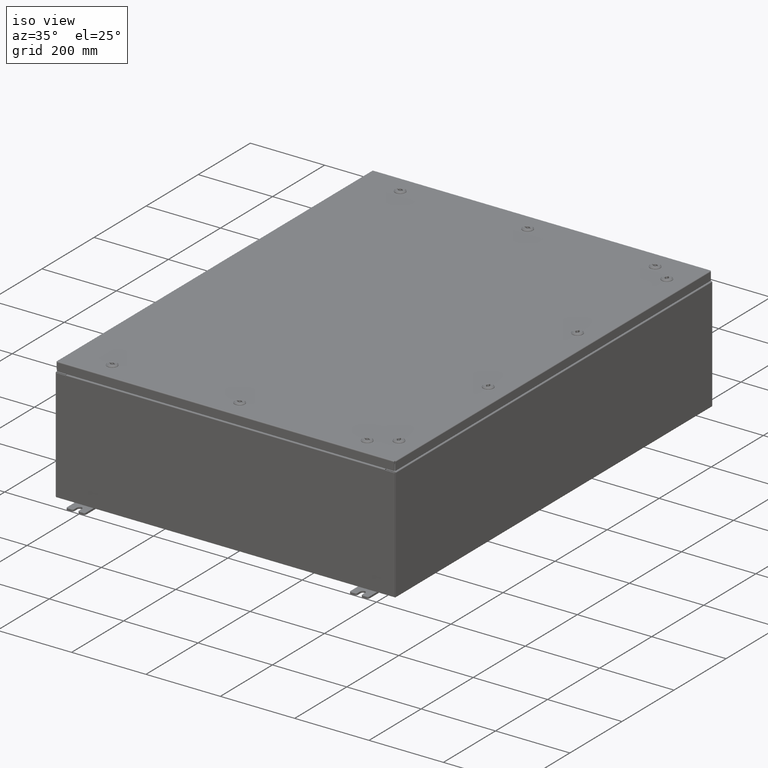
[diagram: clean part render]
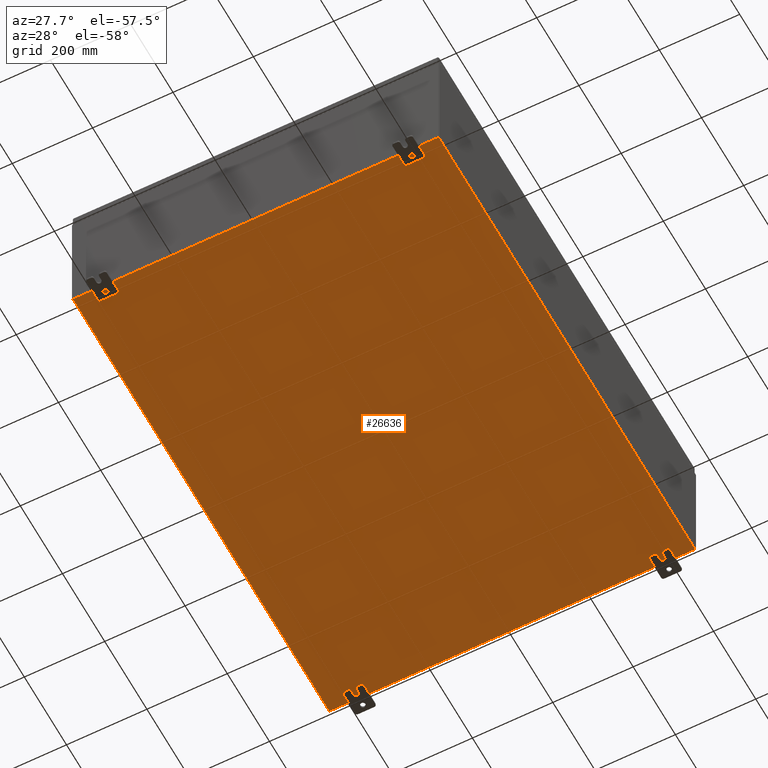
[diagram: tour spotlight — one face highlighted and labeled with its STEP entity id]
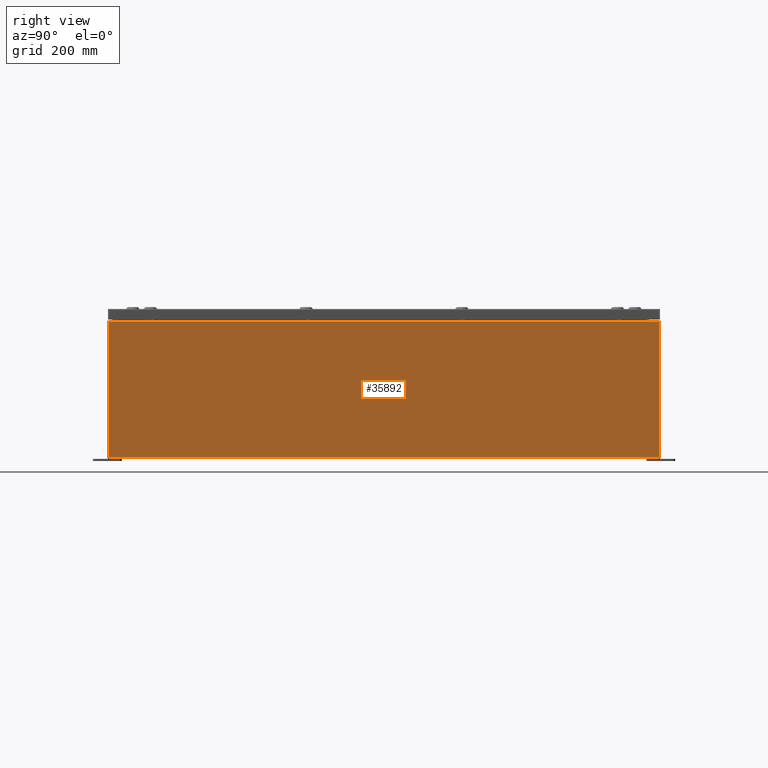
[diagram: tour spotlight — one face highlighted and labeled with its STEP entity id]
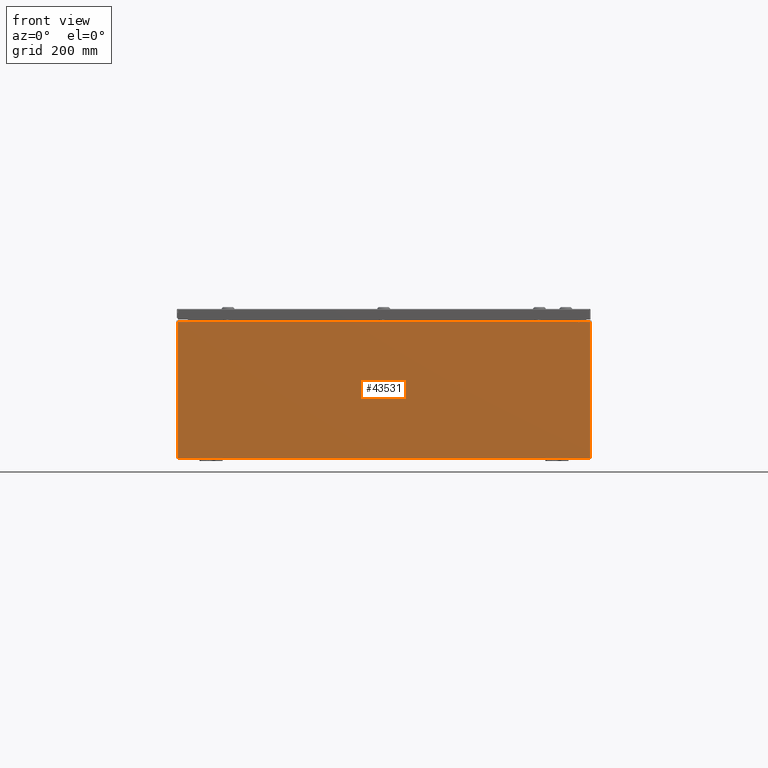
[diagram: tour spotlight — one face highlighted and labeled with its STEP entity id]
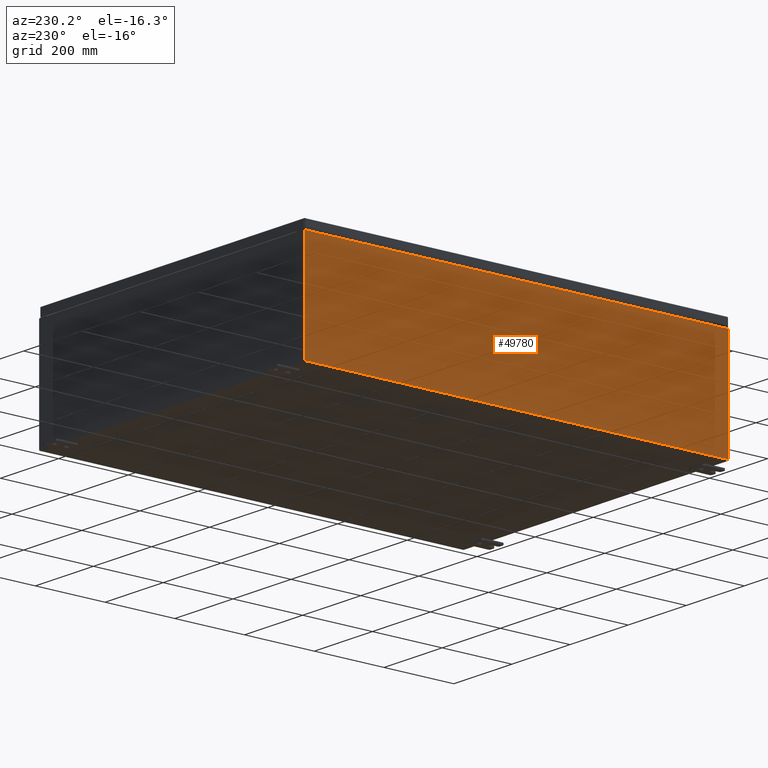
[diagram: tour spotlight — one face highlighted and labeled with its STEP entity id]
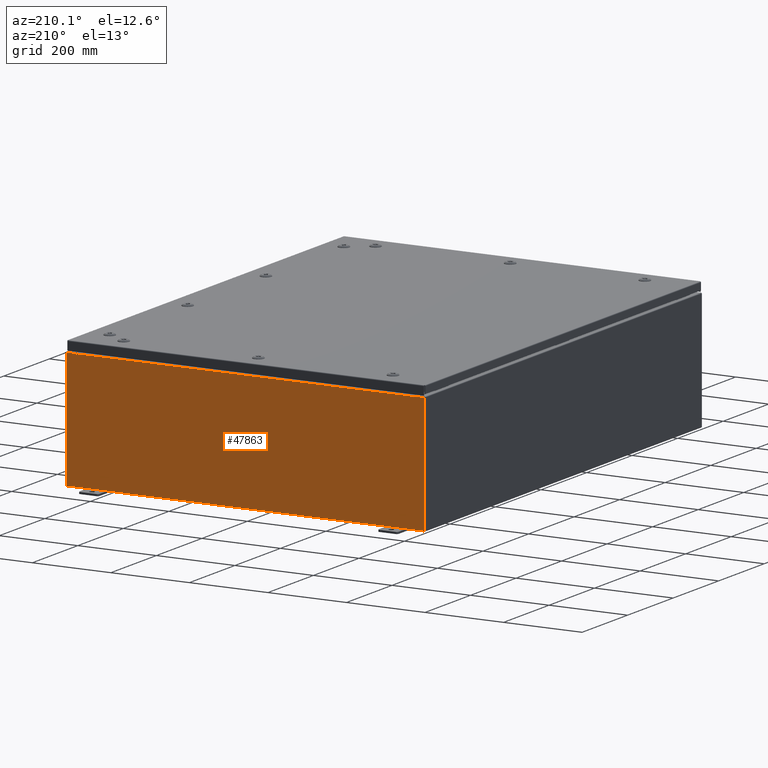
[diagram: tour spotlight — one face highlighted and labeled with its STEP entity id]
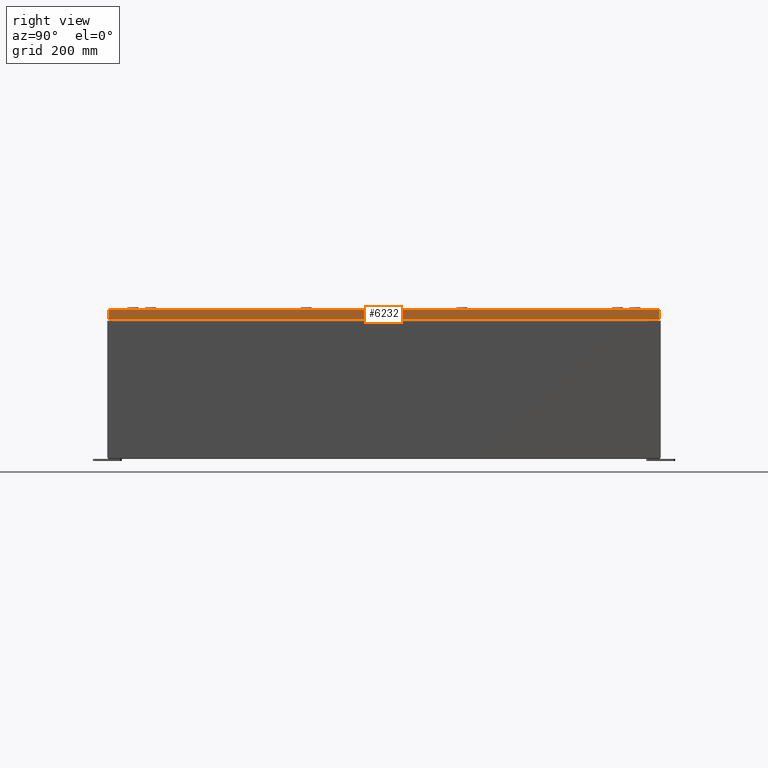
[diagram: tour spotlight — one face highlighted and labeled with its STEP entity id]
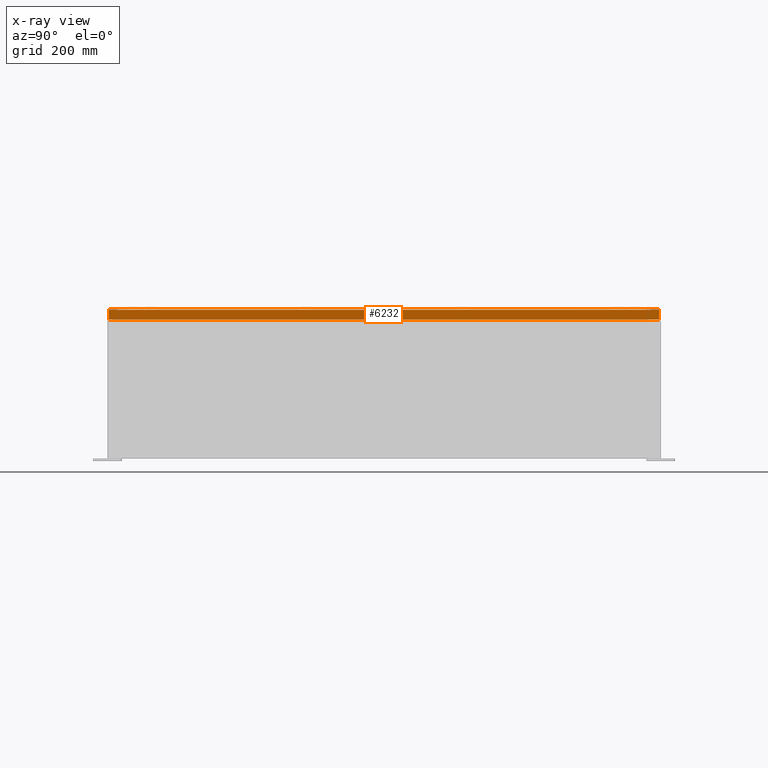
[diagram: x-ray of the same camera — body ghosted, this tour face saturated]
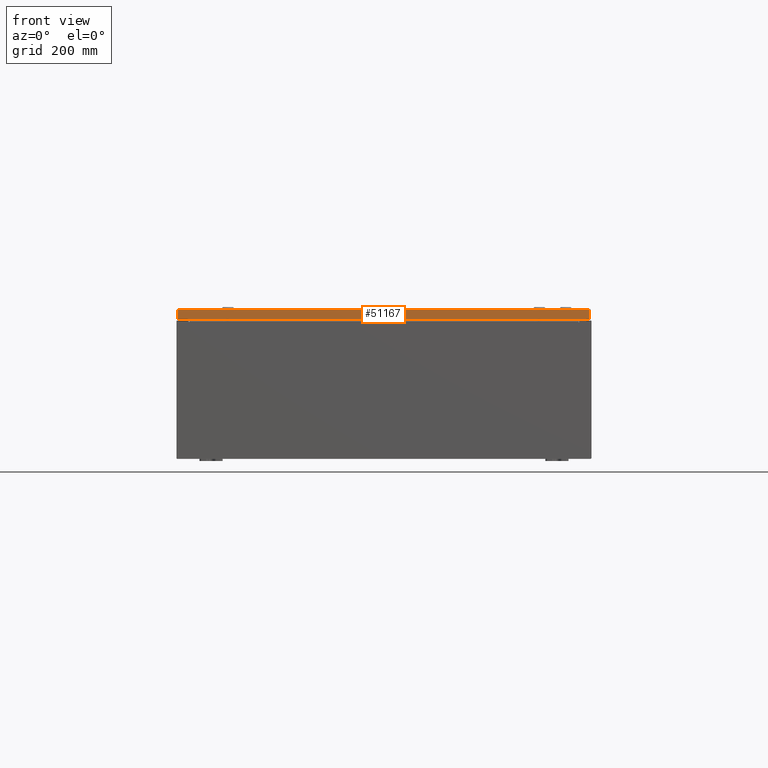
[diagram: tour spotlight — one face highlighted and labeled with its STEP entity id]
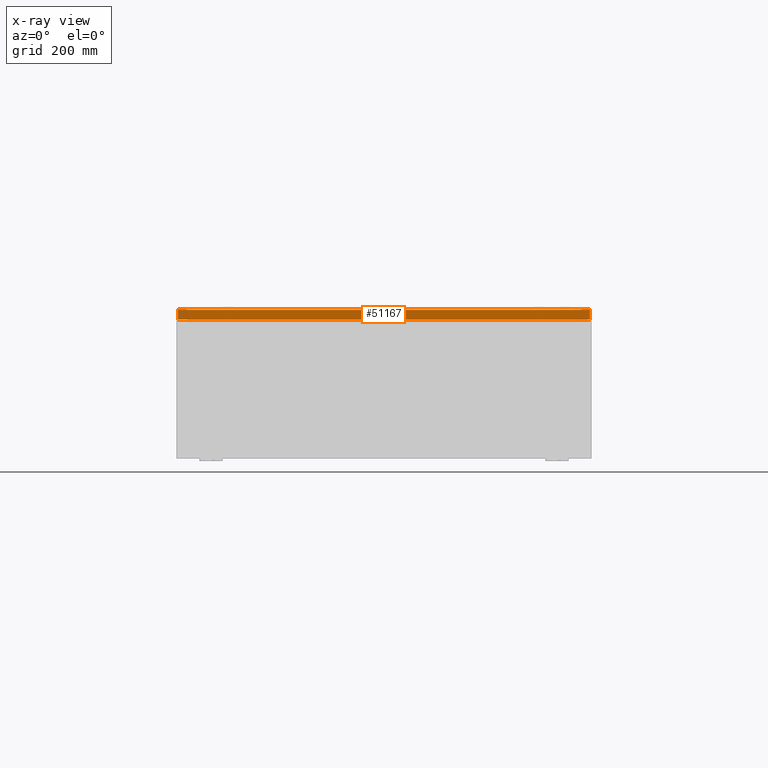
[diagram: x-ray of the same camera — body ghosted, this tour face saturated]
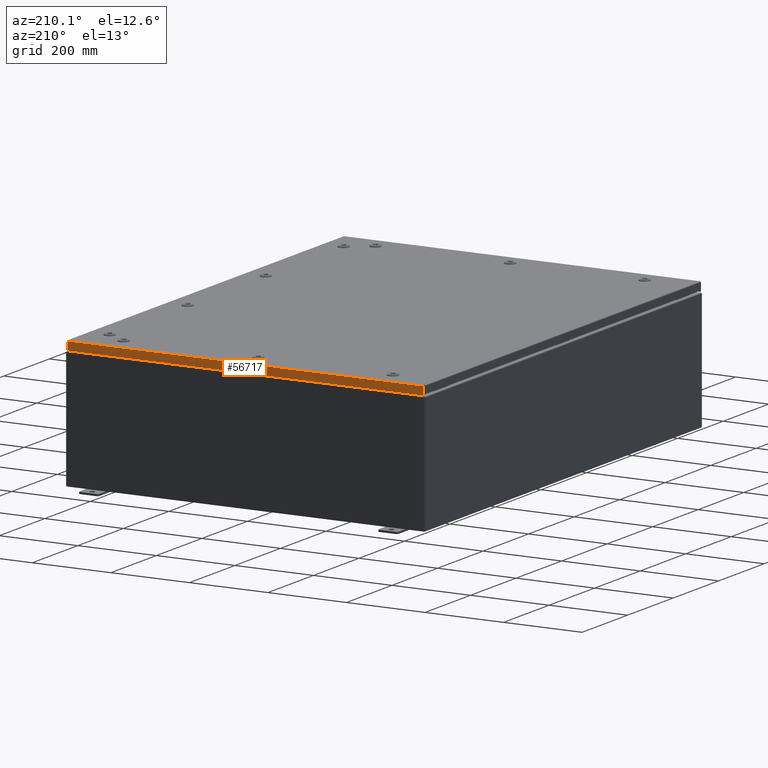
[diagram: tour spotlight — one face highlighted and labeled with its STEP entity id]
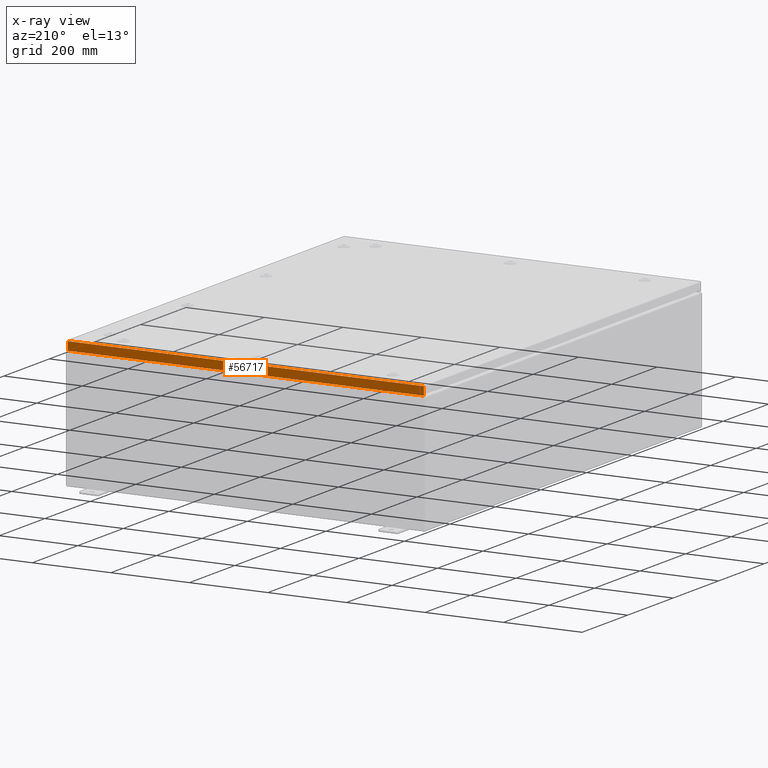
[diagram: x-ray of the same camera — body ghosted, this tour face saturated]
A machine part: a face-by-face anatomy tour. The part has 9060 B-rep faces; the first image is the clean iso view, then the 8 largest visible faces are spotlighted one at a time (largest first), each with its STEP entity span.

Face 1 — auxiliary view, entity #26636. In plain terms, the highlighted planar face has unit normal (0, 0, -1).
Definition (entity closure, byte-faithful):
#1952 = DIRECTION ( 'NONE',  ( -0.0000000000000000000, -1.000000000000000000, -8.208677865577646300E-017 ) ) ;
#2501 = CARTESIAN_POINT ( 'NONE',  ( -17.91230000000000500, -23.92529999999998900, -0.07469999999999994700 ) ) ;
#5456 = EDGE_CURVE ( 'NONE', #27024, #63889, #65703, .T. ) ;
#9116 = VECTOR ( 'NONE', #28925, 39.37007874015748100 ) ;
#9299 = CARTESIAN_POINT ( 'NONE',  ( -18.00000000000000400, -23.92530000000000400, -0.07470000000000000300 ) ) ;
#14619 = DIRECTION ( 'NONE',  ( 1.000000000000000000, 1.214154663850783700E-016, 0.0000000000000000000 ) ) ;
#15353 = LINE ( 'NONE', #17964, #66822 ) ;
#17964 = CARTESIAN_POINT ( 'NONE',  ( 17.91229999999999500, 23.92529999999998900, -0.07469999999999688000 ) ) ;
#18048 = CARTESIAN_POINT ( 'NONE',  ( -17.91230000000000500, 23.92529999999998900, -0.07470000000000000300 ) ) ;
#20267 = VERTEX_POINT ( 'NONE', #40940 ) ;
#22447 = DIRECTION ( 'NONE',  ( -1.000000000000000000, 0.0000000000000000000, -0.0000000000000000000 ) ) ;
#26636 = ADVANCED_FACE ( 'NONE', ( #64948 ), #43555, .T. ) ;
#27024 = VERTEX_POINT ( 'NONE', #56702 ) ;
#28899 = EDGE_CURVE ( 'NONE', #65419, #63889, #40685, .T. ) ;
#28925 = DIRECTION ( 'NONE',  ( -0.0000000000000000000, 1.000000000000000000, -0.0000000000000000000 ) ) ;
#29321 = DIRECTION ( 'NONE',  ( -1.000000000000000000, -0.0000000000000000000, -0.0000000000000000000 ) ) ;
#29679 = ORIENTED_EDGE ( 'NONE', *, *, #28899, .T. ) ;
#33222 = CARTESIAN_POINT ( 'NONE',  ( -18.00000000000000400, 23.92530000000000000, -0.07470000000000000300 ) ) ;
#38267 = ORIENTED_EDGE ( 'NONE', *, *, #44915, .T. ) ;
#39131 = VECTOR ( 'NONE', #29321, 39.37007874015748100 ) ;
#40685 = LINE ( 'NONE', #2501, #9116 ) ;
#40940 = CARTESIAN_POINT ( 'NONE',  ( 17.91229999999999500, -23.92530000000000000, -0.07470000000000000300 ) ) ;
#43338 = CARTESIAN_POINT ( 'NONE',  ( 0.0000000000000000000, 0.0000000000000000000, -0.07470000000000000300 ) ) ;
#43555 = PLANE ( 'NONE',  #44269 ) ;
#44269 = AXIS2_PLACEMENT_3D ( 'NONE', #43338, #54207, #22447 ) ;
#44915 = EDGE_CURVE ( 'NONE', #27024, #20267, #15353, .T. ) ;
#49896 = LINE ( 'NONE', #9299, #62380 ) ;
#50437 = EDGE_CURVE ( 'NONE', #65419, #20267, #49896, .T. ) ;
#50590 = EDGE_LOOP ( 'NONE', ( #66643, #29679, #54860, #38267 ) ) ;
#53047 = CARTESIAN_POINT ( 'NONE',  ( -17.91230000000000500, -23.92529999999998600, -0.07469999999999994700 ) ) ;
#54207 = DIRECTION ( 'NONE',  ( 0.0000000000000000000, 0.0000000000000000000, -1.000000000000000000 ) ) ;
#54860 = ORIENTED_EDGE ( 'NONE', *, *, #5456, .F. ) ;
#56702 = CARTESIAN_POINT ( 'NONE',  ( 17.91229999999999500, 23.92529999999998600, -0.07469999999999688000 ) ) ;
#62380 = VECTOR ( 'NONE', #14619, 39.37007874015748100 ) ;
#63889 = VERTEX_POINT ( 'NONE', #18048 ) ;
#64948 = FACE_OUTER_BOUND ( 'NONE', #50590, .T. ) ;
#65419 = VERTEX_POINT ( 'NONE', #53047 ) ;
#65703 = LINE ( 'NONE', #33222, #39131 ) ;
#66643 = ORIENTED_EDGE ( 'NONE', *, *, #50437, .F. ) ;
#66822 = VECTOR ( 'NONE', #1952, 39.37007874015748100 ) ;

Face 2 — right view, entity #35892. In plain terms, the highlighted planar face has unit normal (-1, 0, 0).
Definition (entity closure, byte-faithful):
#1488 = DIRECTION ( 'NONE',  ( 3.482016343714355500E-015, 0.0000000000000000000, 1.000000000000000000 ) ) ;
#2228 = CARTESIAN_POINT ( 'NONE',  ( 17.99999999999999600, -23.92529999999998900, 0.01299999999999897800 ) ) ;
#8235 = CARTESIAN_POINT ( 'NONE',  ( 17.99999999999999600, -23.92529999999998900, 0.01299999999999984700 ) ) ;
#10321 = EDGE_CURVE ( 'NONE', #44590, #39430, #17316, .T. ) ;
#10672 = CARTESIAN_POINT ( 'NONE',  ( 18.00000000000003900, 23.92529999999998900, 11.83760000000000000 ) ) ;
#12869 = VECTOR ( 'NONE', #40035, 39.37007874015748100 ) ;
#14719 = ORIENTED_EDGE ( 'NONE', *, *, #10321, .T. ) ;
#14789 = VERTEX_POINT ( 'NONE', #18011 ) ;
#15665 = VECTOR ( 'NONE', #58775, 39.37007874015748100 ) ;
#15845 = PLANE ( 'NONE',  #66855 ) ;
#17316 = LINE ( 'NONE', #64135, #15665 ) ;
#18011 = CARTESIAN_POINT ( 'NONE',  ( 17.99999999999999600, 23.92529999999998600, 0.01300000000000203200 ) ) ;
#18293 = EDGE_LOOP ( 'NONE', ( #25480, #14719, #31409, #20531 ) ) ;
#20531 = ORIENTED_EDGE ( 'NONE', *, *, #45853, .T. ) ;
#21174 = DIRECTION ( 'NONE',  ( 3.482016343714355100E-015, 0.0000000000000000000, 1.000000000000000000 ) ) ;
#23685 = FACE_OUTER_BOUND ( 'NONE', #18293, .T. ) ;
#25480 = ORIENTED_EDGE ( 'NONE', *, *, #57265, .T. ) ;
#27026 = LINE ( 'NONE', #8235, #12869 ) ;
#31409 = ORIENTED_EDGE ( 'NONE', *, *, #44341, .F. ) ;
#34934 = VECTOR ( 'NONE', #47793, 39.37007874015748100 ) ;
#35892 = ADVANCED_FACE ( 'NONE', ( #23685 ), #15845, .F. ) ;
#36083 = CARTESIAN_POINT ( 'NONE',  ( 18.00000000000003900, 23.92529999999998600, 11.83760000000000000 ) ) ;
#37262 = CARTESIAN_POINT ( 'NONE',  ( 18.00000000000003900, -23.92529999999998900, 11.83760000000000000 ) ) ;
#39430 = VERTEX_POINT ( 'NONE', #2228 ) ;
#40035 = DIRECTION ( 'NONE',  ( -1.590339826456887700E-031, -1.000000000000000000, -4.567295697298285000E-017 ) ) ;
#40185 = LINE ( 'NONE', #65077, #66768 ) ;
#42295 = CARTESIAN_POINT ( 'NONE',  ( 17.99999999999999600, 0.0000000000000000000, -6.293710784286996200E-014 ) ) ;
#44341 = EDGE_CURVE ( 'NONE', #14789, #39430, #27026, .T. ) ;
#44590 = VERTEX_POINT ( 'NONE', #37262 ) ;
#45853 = EDGE_CURVE ( 'NONE', #14789, #68078, #40185, .T. ) ;
#47419 = LINE ( 'NONE', #10672, #34934 ) ;
#47793 = DIRECTION ( 'NONE',  ( -0.0000000000000000000, -1.000000000000000000, -0.0000000000000000000 ) ) ;
#52954 = DIRECTION ( 'NONE',  ( -1.000000000000000000, 0.0000000000000000000, 3.482016343714355100E-015 ) ) ;
#57265 = EDGE_CURVE ( 'NONE', #68078, #44590, #47419, .T. ) ;
#58775 = DIRECTION ( 'NONE',  ( -3.482016343714355500E-015, 0.0000000000000000000, -1.000000000000000000 ) ) ;
#64135 = CARTESIAN_POINT ( 'NONE',  ( 17.99999999999999600, -23.92529999999998900, -6.293710784286996200E-014 ) ) ;
#65077 = CARTESIAN_POINT ( 'NONE',  ( 17.99999999999999600, 23.92529999999998900, -6.293710784286996200E-014 ) ) ;
#66768 = VECTOR ( 'NONE', #1488, 39.37007874015748100 ) ;
#66855 = AXIS2_PLACEMENT_3D ( 'NONE', #42295, #52954, #21174 ) ;
#68078 = VERTEX_POINT ( 'NONE', #36083 ) ;

Face 3 — front view, entity #43531. In plain terms, the highlighted planar face has unit normal (-0, 1, -0).
Definition (entity closure, byte-faithful):
#604 = DIRECTION ( 'NONE',  ( -0.0000000000000000000, 1.000000000000000000, -0.0000000000000000000 ) ) ;
#836 = DIRECTION ( 'NONE',  ( 0.0000000000000000000, 0.0000000000000000000, -1.000000000000000000 ) ) ;
#1311 = PLANE ( 'NONE',  #40405 ) ;
#1885 = ORIENTED_EDGE ( 'NONE', *, *, #41205, .T. ) ;
#2185 = AXIS2_PLACEMENT_3D ( 'NONE', #68672, #63849, #24943 ) ;
#2557 = EDGE_CURVE ( 'NONE', #53159, #7022, #6890, .T. ) ;
#2965 = EDGE_CURVE ( 'NONE', #27079, #16897, #53358, .T. ) ;
#3121 = CARTESIAN_POINT ( 'NONE',  ( 16.88720000000000000, 0.0000000000000000000, 0.0000000000000000000 ) ) ;
#3837 = CARTESIAN_POINT ( 'NONE',  ( 16.88720000000000000, 0.0000000000000000000, 5.874949999999999200 ) ) ;
#6647 = DIRECTION ( 'NONE',  ( 0.0000000000000000000, -0.0000000000000000000, -1.000000000000000000 ) ) ;
#6890 = CIRCLE ( 'NONE', #2185, 0.01867499999999949400 ) ;
#7022 = VERTEX_POINT ( 'NONE', #62709 ) ;
#7956 = VECTOR ( 'NONE', #56961, 39.37007874015748100 ) ;
#9346 = VECTOR ( 'NONE', #16092, 39.37007874015748100 ) ;
#10011 = ORIENTED_EDGE ( 'NONE', *, *, #2965, .F. ) ;
#10437 = LINE ( 'NONE', #22630, #21228 ) ;
#10514 = EDGE_CURVE ( 'NONE', #22959, #38331, #24761, .T. ) ;
#11846 = CARTESIAN_POINT ( 'NONE',  ( -16.92454999999998900, -0.0000000000000000000, 0.0000000000000000000 ) ) ;
#12357 = CIRCLE ( 'NONE', #34228, 0.01867499999999949400 ) ;
#13195 = ORIENTED_EDGE ( 'NONE', *, *, #18510, .F. ) ;
#14456 = CARTESIAN_POINT ( 'NONE',  ( -17.92529999999999600, 0.0000000000000000000, 5.925299999999999100 ) ) ;
#15605 = CARTESIAN_POINT ( 'NONE',  ( 16.92454999999949200, -0.0000000000000000000, -1.469244821010302200E-012 ) ) ;
#16092 = DIRECTION ( 'NONE',  ( 0.0000000000000000000, 0.0000000000000000000, 1.000000000000000000 ) ) ;
#16573 = ORIENTED_EDGE ( 'NONE', *, *, #42117, .T. ) ;
#16897 = VERTEX_POINT ( 'NONE', #22011 ) ;
#17393 = CARTESIAN_POINT ( 'NONE',  ( -16.88719999999999600, 3.756290991288361700E-016, 5.912299999999999200 ) ) ;
#18439 = CARTESIAN_POINT ( 'NONE',  ( -17.92529999999999600, 0.0000000000000000000, -5.925300000000000000 ) ) ;
#18510 = EDGE_CURVE ( 'NONE', #33197, #27079, #12357, .T. ) ;
#20039 = VERTEX_POINT ( 'NONE', #18439 ) ;
#20272 = EDGE_CURVE ( 'NONE', #20039, #36525, #42157, .T. ) ;
#20926 = CARTESIAN_POINT ( 'NONE',  ( 16.92455000000000400, 0.0000000000000000000, 5.925300000000000000 ) ) ;
#21228 = VECTOR ( 'NONE', #836, 39.37007874015748100 ) ;
#22011 = CARTESIAN_POINT ( 'NONE',  ( 16.88720000000000000, 0.0000000000000000000, 5.912299999999999200 ) ) ;
#22109 = LINE ( 'NONE', #67678, #7956 ) ;
#22555 = CARTESIAN_POINT ( 'NONE',  ( -17.92529999999999600, 0.0000000000000000000, 5.925299999999999100 ) ) ;
#22630 = CARTESIAN_POINT ( 'NONE',  ( -16.88719999999998900, -0.0000000000000000000, 0.0000000000000000000 ) ) ;
#22959 = VERTEX_POINT ( 'NONE', #20926 ) ;
#23267 = CARTESIAN_POINT ( 'NONE',  ( 17.92530000000000400, 0.0000000000000000000, 5.925300000000000000 ) ) ;
#24223 = VERTEX_POINT ( 'NONE', #56886 ) ;
#24710 = EDGE_CURVE ( 'NONE', #38331, #32161, #59275, .T. ) ;
#24761 = LINE ( 'NONE', #22555, #26451 ) ;
#24779 = ORIENTED_EDGE ( 'NONE', *, *, #32887, .F. ) ;
#24943 = DIRECTION ( 'NONE',  ( 0.0000000000000000000, 0.0000000000000000000, -1.000000000000000000 ) ) ;
#26369 = VECTOR ( 'NONE', #35567, 39.37007874015748100 ) ;
#26451 = VECTOR ( 'NONE', #54528, 39.37007874015748100 ) ;
#27079 = VERTEX_POINT ( 'NONE', #3837 ) ;
#27457 = EDGE_LOOP ( 'NONE', ( #24779, #60670, #30403, #16573, #10011, #13195, #45475, #56250, #53434, #63577, #62466, #1885 ) ) ;
#28046 = CARTESIAN_POINT ( 'NONE',  ( -16.92454999999998900, 0.0000000000000000000, 5.925299999999999100 ) ) ;
#29441 = CARTESIAN_POINT ( 'NONE',  ( 16.92455000000000000, 0.0000000000000000000, 5.874949999999999200 ) ) ;
#30403 = ORIENTED_EDGE ( 'NONE', *, *, #65686, .F. ) ;
#32161 = VERTEX_POINT ( 'NONE', #58618 ) ;
#32401 = CARTESIAN_POINT ( 'NONE',  ( 16.90587500000000200, 0.0000000000000000000, 5.874949999999999200 ) ) ;
#32555 = LINE ( 'NONE', #15605, #59121 ) ;
#32887 = EDGE_CURVE ( 'NONE', #7022, #57845, #39645, .T. ) ;
#33088 = CARTESIAN_POINT ( 'NONE',  ( 0.0000000000000000000, 0.0000000000000000000, 0.0000000000000000000 ) ) ;
#33197 = VERTEX_POINT ( 'NONE', #29441 ) ;
#34228 = AXIS2_PLACEMENT_3D ( 'NONE', #32401, #604, #37749 ) ;
#35567 = DIRECTION ( 'NONE',  ( -0.0000000000000000000, -0.0000000000000000000, 1.000000000000000000 ) ) ;
#36525 = VERTEX_POINT ( 'NONE', #62881 ) ;
#37749 = DIRECTION ( 'NONE',  ( 0.0000000000000000000, 0.0000000000000000000, -1.000000000000000000 ) ) ;
#37870 = CARTESIAN_POINT ( 'NONE',  ( 17.92530000000000400, 0.0000000000000000000, 5.925300000000000000 ) ) ;
#38024 = LINE ( 'NONE', #66508, #53768 ) ;
#38331 = VERTEX_POINT ( 'NONE', #37870 ) ;
#38442 = DIRECTION ( 'NONE',  ( 0.0000000000000000000, -1.000000000000000000, 0.0000000000000000000 ) ) ;
#39645 = LINE ( 'NONE', #11846, #67927 ) ;
#40405 = AXIS2_PLACEMENT_3D ( 'NONE', #33088, #38442, #6647 ) ;
#41205 = EDGE_CURVE ( 'NONE', #36525, #57845, #22109, .T. ) ;
#42117 = EDGE_CURVE ( 'NONE', #24223, #16897, #61047, .T. ) ;
#42157 = LINE ( 'NONE', #14456, #26369 ) ;
#43531 = ADVANCED_FACE ( 'NONE', ( #48661 ), #1311, .F. ) ;
#44384 = DIRECTION ( 'NONE',  ( 0.0000000000000000000, 0.0000000000000000000, -1.000000000000000000 ) ) ;
#45475 = ORIENTED_EDGE ( 'NONE', *, *, #48321, .F. ) ;
#48321 = EDGE_CURVE ( 'NONE', #22959, #33197, #32555, .T. ) ;
#48661 = FACE_OUTER_BOUND ( 'NONE', #27457, .T. ) ;
#48988 = DIRECTION ( 'NONE',  ( 0.0000000000000000000, 0.0000000000000000000, 1.000000000000000000 ) ) ;
#49176 = DIRECTION ( 'NONE',  ( 1.000000000000000000, 0.0000000000000000000, 0.0000000000000000000 ) ) ;
#50245 = VECTOR ( 'NONE', #49176, 39.37007874015748100 ) ;
#50705 = DIRECTION ( 'NONE',  ( -1.000000000000000000, -0.0000000000000000000, -0.0000000000000000000 ) ) ;
#52729 = DIRECTION ( 'NONE',  ( -8.681145560799821800E-014, 0.0000000000000000000, -1.000000000000000000 ) ) ;
#53159 = VERTEX_POINT ( 'NONE', #65716 ) ;
#53358 = LINE ( 'NONE', #3121, #9346 ) ;
#53434 = ORIENTED_EDGE ( 'NONE', *, *, #24710, .T. ) ;
#53768 = VECTOR ( 'NONE', #50705, 39.37007874015748100 ) ;
#54465 = EDGE_CURVE ( 'NONE', #32161, #20039, #38024, .T. ) ;
#54528 = DIRECTION ( 'NONE',  ( 1.000000000000000000, 0.0000000000000000000, 3.048036009064577000E-017 ) ) ;
#56250 = ORIENTED_EDGE ( 'NONE', *, *, #10514, .T. ) ;
#56886 = CARTESIAN_POINT ( 'NONE',  ( -16.88719999999998900, 3.756290991288361700E-016, 5.912299999999999200 ) ) ;
#56961 = DIRECTION ( 'NONE',  ( 1.000000000000000000, 0.0000000000000000000, 3.048036009064577000E-017 ) ) ;
#57845 = VERTEX_POINT ( 'NONE', #28046 ) ;
#58618 = CARTESIAN_POINT ( 'NONE',  ( 17.92530000000000400, 0.0000000000000000000, -5.925300000000000000 ) ) ;
#59121 = VECTOR ( 'NONE', #52729, 39.37007874015748100 ) ;
#59275 = LINE ( 'NONE', #23267, #60918 ) ;
#60670 = ORIENTED_EDGE ( 'NONE', *, *, #2557, .F. ) ;
#60918 = VECTOR ( 'NONE', #44384, 39.37007874015748100 ) ;
#61047 = LINE ( 'NONE', #17393, #50245 ) ;
#62466 = ORIENTED_EDGE ( 'NONE', *, *, #20272, .T. ) ;
#62709 = CARTESIAN_POINT ( 'NONE',  ( -16.92454999999998900, 0.0000000000000000000, 5.874949999999999200 ) ) ;
#62881 = CARTESIAN_POINT ( 'NONE',  ( -17.92529999999999600, 0.0000000000000000000, 5.925299999999999100 ) ) ;
#63577 = ORIENTED_EDGE ( 'NONE', *, *, #54465, .T. ) ;
#63849 = DIRECTION ( 'NONE',  ( -0.0000000000000000000, 1.000000000000000000, -0.0000000000000000000 ) ) ;
#65686 = EDGE_CURVE ( 'NONE', #24223, #53159, #10437, .T. ) ;
#65716 = CARTESIAN_POINT ( 'NONE',  ( -16.88719999999998900, -0.0000000000000000000, 5.874949999999999200 ) ) ;
#66508 = CARTESIAN_POINT ( 'NONE',  ( -17.92529999999999600, 0.0000000000000000000, -5.925300000000000000 ) ) ;
#67678 = CARTESIAN_POINT ( 'NONE',  ( -17.92529999999999600, 0.0000000000000000000, 5.925299999999999100 ) ) ;
#67927 = VECTOR ( 'NONE', #48988, 39.37007874015748100 ) ;
#68672 = CARTESIAN_POINT ( 'NONE',  ( -16.90587499999999100, 0.0000000000000000000, 5.874949999999999200 ) ) ;

Face 4 — auxiliary view, entity #49780. In plain terms, the highlighted planar face has unit normal (1, 0, 0).
Definition (entity closure, byte-faithful):
#1723 = DIRECTION ( 'NONE',  ( -0.0000000000000000000, 1.000000000000000000, -0.0000000000000000000 ) ) ;
#3832 = DIRECTION ( 'NONE',  ( 1.000000000000000000, 0.0000000000000000000, 3.482016343714355100E-015 ) ) ;
#5141 = EDGE_CURVE ( 'NONE', #57524, #50554, #5147, .T. ) ;
#5147 = LINE ( 'NONE', #32316, #59903 ) ;
#7259 = AXIS2_PLACEMENT_3D ( 'NONE', #56700, #3832, #40956 ) ;
#9993 = CARTESIAN_POINT ( 'NONE',  ( -18.00000000000000400, 23.92529999999998900, 0.01299999999999984700 ) ) ;
#10632 = VECTOR ( 'NONE', #50970, 39.37007874015748100 ) ;
#12366 = CARTESIAN_POINT ( 'NONE',  ( -18.00000000000000400, 23.92529999999998900, 0.01299999999999984700 ) ) ;
#14836 = DIRECTION ( 'NONE',  ( 0.0000000000000000000, 1.000000000000000000, 0.0000000000000000000 ) ) ;
#24726 = LINE ( 'NONE', #45618, #10632 ) ;
#29386 = LINE ( 'NONE', #12366, #55964 ) ;
#32316 = CARTESIAN_POINT ( 'NONE',  ( -18.00000000000000400, 23.92529999999998900, -6.293710784286998800E-014 ) ) ;
#35598 = PLANE ( 'NONE',  #7259 ) ;
#35866 = ORIENTED_EDGE ( 'NONE', *, *, #67245, .F. ) ;
#37197 = DIRECTION ( 'NONE',  ( 3.482016343714355500E-015, 0.0000000000000000000, -1.000000000000000000 ) ) ;
#38258 = VERTEX_POINT ( 'NONE', #42969 ) ;
#40956 = DIRECTION ( 'NONE',  ( 3.482016343714355100E-015, 0.0000000000000000000, -1.000000000000000000 ) ) ;
#42969 = CARTESIAN_POINT ( 'NONE',  ( -18.00000000000000400, -23.92529999999998600, 0.01299999999999984700 ) ) ;
#45015 = LINE ( 'NONE', #62674, #60822 ) ;
#45618 = CARTESIAN_POINT ( 'NONE',  ( -18.00000000000000400, -23.92529999999999600, -6.293710784286998800E-014 ) ) ;
#46328 = ORIENTED_EDGE ( 'NONE', *, *, #5141, .T. ) ;
#47435 = EDGE_CURVE ( 'NONE', #66579, #57524, #45015, .T. ) ;
#49780 = ADVANCED_FACE ( 'NONE', ( #54095 ), #35598, .F. ) ;
#50064 = CARTESIAN_POINT ( 'NONE',  ( -18.00000000000004600, 23.92529999999998900, 11.83760000000000000 ) ) ;
#50554 = VERTEX_POINT ( 'NONE', #9993 ) ;
#50970 = DIRECTION ( 'NONE',  ( -3.482016343714355500E-015, 0.0000000000000000000, 1.000000000000000000 ) ) ;
#52619 = CARTESIAN_POINT ( 'NONE',  ( -18.00000000000004600, -23.92529999999998600, 11.83760000000000000 ) ) ;
#54026 = EDGE_CURVE ( 'NONE', #38258, #66579, #24726, .T. ) ;
#54095 = FACE_OUTER_BOUND ( 'NONE', #59249, .T. ) ;
#55964 = VECTOR ( 'NONE', #1723, 39.37007874015748100 ) ;
#56700 = CARTESIAN_POINT ( 'NONE',  ( -18.00000000000000400, 0.0000000000000000000, -6.293710784286998800E-014 ) ) ;
#57524 = VERTEX_POINT ( 'NONE', #50064 ) ;
#58347 = ORIENTED_EDGE ( 'NONE', *, *, #47435, .T. ) ;
#59249 = EDGE_LOOP ( 'NONE', ( #58347, #46328, #35866, #60047 ) ) ;
#59903 = VECTOR ( 'NONE', #37197, 39.37007874015748100 ) ;
#60047 = ORIENTED_EDGE ( 'NONE', *, *, #54026, .T. ) ;
#60822 = VECTOR ( 'NONE', #14836, 39.37007874015748100 ) ;
#62674 = CARTESIAN_POINT ( 'NONE',  ( -18.00000000000004600, -23.92529999999998900, 11.83760000000000000 ) ) ;
#66579 = VERTEX_POINT ( 'NONE', #52619 ) ;
#67245 = EDGE_CURVE ( 'NONE', #38258, #50554, #29386, .T. ) ;

Face 5 — auxiliary view, entity #47863. In plain terms, the highlighted planar face has unit normal (0, -1, 0).
Definition (entity closure, byte-faithful):
#338 = EDGE_CURVE ( 'NONE', #37563, #60703, #34435, .T. ) ;
#1168 = CARTESIAN_POINT ( 'NONE',  ( -17.92529999999999600, 0.0000000000000000000, 5.925299999999999100 ) ) ;
#1360 = DIRECTION ( 'NONE',  ( 1.000000000000000000, 0.0000000000000000000, 3.048036009064577000E-017 ) ) ;
#1409 = ORIENTED_EDGE ( 'NONE', *, *, #41736, .T. ) ;
#1575 = ORIENTED_EDGE ( 'NONE', *, *, #30743, .F. ) ;
#1710 = VECTOR ( 'NONE', #22256, 39.37007874015748100 ) ;
#2458 = EDGE_LOOP ( 'NONE', ( #31997, #65568, #1575, #15375, #23888, #13807, #46048, #12565, #68500, #28452, #1409, #6814 ) ) ;
#3128 = LINE ( 'NONE', #67278, #13869 ) ;
#3373 = LINE ( 'NONE', #64744, #1710 ) ;
#4541 = CARTESIAN_POINT ( 'NONE',  ( 17.92530000000000400, 0.0000000000000000000, -5.925300000000000000 ) ) ;
#4748 = EDGE_CURVE ( 'NONE', #6485, #46656, #43346, .T. ) ;
#4864 = LINE ( 'NONE', #17926, #17289 ) ;
#6088 = CARTESIAN_POINT ( 'NONE',  ( 16.88720000000000000, 0.0000000000000000000, 0.0000000000000000000 ) ) ;
#6485 = VERTEX_POINT ( 'NONE', #58547 ) ;
#6814 = ORIENTED_EDGE ( 'NONE', *, *, #45158, .T. ) ;
#7439 = EDGE_CURVE ( 'NONE', #67761, #48007, #20850, .T. ) ;
#7463 = DIRECTION ( 'NONE',  ( 0.0000000000000000000, 0.0000000000000000000, -1.000000000000000000 ) ) ;
#7756 = LINE ( 'NONE', #6088, #48465 ) ;
#9544 = VERTEX_POINT ( 'NONE', #1168 ) ;
#9647 = VERTEX_POINT ( 'NONE', #23545 ) ;
#11409 = DIRECTION ( 'NONE',  ( 0.0000000000000000000, 0.0000000000000000000, 1.000000000000000000 ) ) ;
#12565 = ORIENTED_EDGE ( 'NONE', *, *, #338, .T. ) ;
#12930 = LINE ( 'NONE', #28704, #67775 ) ;
#12959 = DIRECTION ( 'NONE',  ( -0.0000000000000000000, -0.0000000000000000000, 1.000000000000000000 ) ) ;
#13154 = DIRECTION ( 'NONE',  ( -1.000000000000000000, -0.0000000000000000000, -0.0000000000000000000 ) ) ;
#13608 = EDGE_CURVE ( 'NONE', #46656, #24913, #53610, .T. ) ;
#13807 = ORIENTED_EDGE ( 'NONE', *, *, #7439, .F. ) ;
#13869 = VECTOR ( 'NONE', #40816, 39.37007874015748100 ) ;
#14420 = CARTESIAN_POINT ( 'NONE',  ( -17.92529999999999600, 0.0000000000000000000, 5.925299999999999100 ) ) ;
#15375 = ORIENTED_EDGE ( 'NONE', *, *, #51056, .T. ) ;
#16082 = CARTESIAN_POINT ( 'NONE',  ( -16.90587499999999100, 0.0000000000000000000, 5.874949999999999200 ) ) ;
#16647 = DIRECTION ( 'NONE',  ( -8.681145560799821800E-014, 0.0000000000000000000, -1.000000000000000000 ) ) ;
#16739 = DIRECTION ( 'NONE',  ( 0.0000000000000000000, 0.0000000000000000000, 1.000000000000000000 ) ) ;
#17259 = CARTESIAN_POINT ( 'NONE',  ( 16.92455000000000400, 0.0000000000000000000, 5.925300000000000000 ) ) ;
#17289 = VECTOR ( 'NONE', #7463, 39.37007874015748100 ) ;
#17926 = CARTESIAN_POINT ( 'NONE',  ( -16.88719999999998900, -0.0000000000000000000, 0.0000000000000000000 ) ) ;
#18655 = PLANE ( 'NONE',  #42360 ) ;
#19490 = LINE ( 'NONE', #14420, #60152 ) ;
#20212 = AXIS2_PLACEMENT_3D ( 'NONE', #61456, #29640, #66784 ) ;
#20850 = CIRCLE ( 'NONE', #20212, 0.01867499999999949400 ) ;
#22256 = DIRECTION ( 'NONE',  ( 1.000000000000000000, 0.0000000000000000000, 0.0000000000000000000 ) ) ;
#23511 = CARTESIAN_POINT ( 'NONE',  ( 0.0000000000000000000, 0.0000000000000000000, 0.0000000000000000000 ) ) ;
#23545 = CARTESIAN_POINT ( 'NONE',  ( -17.92529999999999600, 0.0000000000000000000, -5.925300000000000000 ) ) ;
#23888 = ORIENTED_EDGE ( 'NONE', *, *, #46374, .F. ) ;
#23975 = DIRECTION ( 'NONE',  ( 0.0000000000000000000, -1.000000000000000000, 0.0000000000000000000 ) ) ;
#24913 = VERTEX_POINT ( 'NONE', #52189 ) ;
#26442 = CARTESIAN_POINT ( 'NONE',  ( 17.92530000000000400, 0.0000000000000000000, 5.925300000000000000 ) ) ;
#27315 = CARTESIAN_POINT ( 'NONE',  ( 16.92454999999949200, -0.0000000000000000000, -1.469244821010302200E-012 ) ) ;
#28452 = ORIENTED_EDGE ( 'NONE', *, *, #64993, .T. ) ;
#28704 = CARTESIAN_POINT ( 'NONE',  ( -17.92529999999999600, 0.0000000000000000000, -5.925300000000000000 ) ) ;
#29640 = DIRECTION ( 'NONE',  ( -0.0000000000000000000, 1.000000000000000000, -0.0000000000000000000 ) ) ;
#30743 = EDGE_CURVE ( 'NONE', #39492, #6485, #4864, .T. ) ;
#31414 = DIRECTION ( 'NONE',  ( 0.0000000000000000000, 0.0000000000000000000, -1.000000000000000000 ) ) ;
#31997 = ORIENTED_EDGE ( 'NONE', *, *, #13608, .F. ) ;
#33301 = EDGE_CURVE ( 'NONE', #60703, #35633, #3128, .T. ) ;
#34096 = CARTESIAN_POINT ( 'NONE',  ( -17.92529999999999600, 0.0000000000000000000, 5.925299999999999100 ) ) ;
#34435 = LINE ( 'NONE', #57987, #67696 ) ;
#35387 = VECTOR ( 'NONE', #16647, 39.37007874015748100 ) ;
#35633 = VERTEX_POINT ( 'NONE', #4541 ) ;
#36949 = AXIS2_PLACEMENT_3D ( 'NONE', #16082, #55638, #31414 ) ;
#37563 = VERTEX_POINT ( 'NONE', #17259 ) ;
#38047 = CARTESIAN_POINT ( 'NONE',  ( 16.92455000000000000, 0.0000000000000000000, 5.874949999999999200 ) ) ;
#39464 = VECTOR ( 'NONE', #16739, 39.37007874015748100 ) ;
#39492 = VERTEX_POINT ( 'NONE', #55335 ) ;
#39968 = CARTESIAN_POINT ( 'NONE',  ( -16.92454999999998900, 0.0000000000000000000, 5.874949999999999200 ) ) ;
#40681 = EDGE_CURVE ( 'NONE', #37563, #67761, #49518, .T. ) ;
#40816 = DIRECTION ( 'NONE',  ( 0.0000000000000000000, 0.0000000000000000000, -1.000000000000000000 ) ) ;
#41736 = EDGE_CURVE ( 'NONE', #9647, #9544, #60244, .T. ) ;
#42360 = AXIS2_PLACEMENT_3D ( 'NONE', #23511, #23975, #61108 ) ;
#43346 = CIRCLE ( 'NONE', #36949, 0.01867499999999949400 ) ;
#45158 = EDGE_CURVE ( 'NONE', #9544, #24913, #19490, .T. ) ;
#46048 = ORIENTED_EDGE ( 'NONE', *, *, #40681, .F. ) ;
#46219 = DIRECTION ( 'NONE',  ( 1.000000000000000000, 0.0000000000000000000, 3.048036009064577000E-017 ) ) ;
#46374 = EDGE_CURVE ( 'NONE', #48007, #52012, #7756, .T. ) ;
#46656 = VERTEX_POINT ( 'NONE', #39968 ) ;
#47530 = FACE_OUTER_BOUND ( 'NONE', #2458, .T. ) ;
#47863 = ADVANCED_FACE ( 'NONE', ( #47530 ), #18655, .F. ) ;
#48007 = VERTEX_POINT ( 'NONE', #66903 ) ;
#48465 = VECTOR ( 'NONE', #11409, 39.37007874015748100 ) ;
#48527 = CARTESIAN_POINT ( 'NONE',  ( -16.92454999999998900, -0.0000000000000000000, 0.0000000000000000000 ) ) ;
#49518 = LINE ( 'NONE', #27315, #35387 ) ;
#51056 = EDGE_CURVE ( 'NONE', #39492, #52012, #3373, .T. ) ;
#52012 = VERTEX_POINT ( 'NONE', #58333 ) ;
#52189 = CARTESIAN_POINT ( 'NONE',  ( -16.92454999999998900, 0.0000000000000000000, 5.925299999999999100 ) ) ;
#53610 = LINE ( 'NONE', #48527, #39464 ) ;
#55335 = CARTESIAN_POINT ( 'NONE',  ( -16.88719999999998900, 3.756290991288361700E-016, 5.912299999999999200 ) ) ;
#55638 = DIRECTION ( 'NONE',  ( -0.0000000000000000000, 1.000000000000000000, -0.0000000000000000000 ) ) ;
#57987 = CARTESIAN_POINT ( 'NONE',  ( -17.92529999999999600, 0.0000000000000000000, 5.925299999999999100 ) ) ;
#58333 = CARTESIAN_POINT ( 'NONE',  ( 16.88720000000000000, 0.0000000000000000000, 5.912299999999999200 ) ) ;
#58547 = CARTESIAN_POINT ( 'NONE',  ( -16.88719999999998900, -0.0000000000000000000, 5.874949999999999200 ) ) ;
#58597 = VECTOR ( 'NONE', #12959, 39.37007874015748100 ) ;
#60152 = VECTOR ( 'NONE', #46219, 39.37007874015748100 ) ;
#60244 = LINE ( 'NONE', #34096, #58597 ) ;
#60703 = VERTEX_POINT ( 'NONE', #26442 ) ;
#61108 = DIRECTION ( 'NONE',  ( 0.0000000000000000000, -0.0000000000000000000, -1.000000000000000000 ) ) ;
#61456 = CARTESIAN_POINT ( 'NONE',  ( 16.90587500000000200, 0.0000000000000000000, 5.874949999999999200 ) ) ;
#64744 = CARTESIAN_POINT ( 'NONE',  ( -16.88719999999999600, 3.756290991288361700E-016, 5.912299999999999200 ) ) ;
#64993 = EDGE_CURVE ( 'NONE', #35633, #9647, #12930, .T. ) ;
#65568 = ORIENTED_EDGE ( 'NONE', *, *, #4748, .F. ) ;
#66784 = DIRECTION ( 'NONE',  ( 0.0000000000000000000, 0.0000000000000000000, -1.000000000000000000 ) ) ;
#66903 = CARTESIAN_POINT ( 'NONE',  ( 16.88720000000000000, 0.0000000000000000000, 5.874949999999999200 ) ) ;
#67278 = CARTESIAN_POINT ( 'NONE',  ( 17.92530000000000400, 0.0000000000000000000, 5.925300000000000000 ) ) ;
#67696 = VECTOR ( 'NONE', #1360, 39.37007874015748100 ) ;
#67761 = VERTEX_POINT ( 'NONE', #38047 ) ;
#67775 = VECTOR ( 'NONE', #13154, 39.37007874015748100 ) ;
#68500 = ORIENTED_EDGE ( 'NONE', *, *, #33301, .T. ) ;

Face 6 — right view, entity #6232. An x-ray twin of the same camera follows (body ghosted, this face saturated) — the face is partly hidden behind the body. In plain terms, the highlighted planar face has unit normal (1, 0, 0).
Definition (entity closure, byte-faithful):
#2317 = LINE ( 'NONE', #63540, #25558 ) ;
#3436 = DIRECTION ( 'NONE',  ( 1.000000000000000000, 0.0000000000000000000, 2.532419924601866100E-015 ) ) ;
#6232 = ADVANCED_FACE ( 'NONE', ( #55787 ), #56303, .T. ) ;
#7068 = VECTOR ( 'NONE', #13855, 39.37007874015748100 ) ;
#7504 = ORIENTED_EDGE ( 'NONE', *, *, #14254, .F. ) ;
#9536 = CARTESIAN_POINT ( 'NONE',  ( 17.93750000000000700, 23.84865786437627800, -0.9376999999999997600 ) ) ;
#11480 = ORIENTED_EDGE ( 'NONE', *, *, #66440, .T. ) ;
#13651 = VECTOR ( 'NONE', #46580, 39.37007874015748100 ) ;
#13855 = DIRECTION ( 'NONE',  ( 0.0000000000000000000, -1.000000000000000000, 0.0000000000000000000 ) ) ;
#14254 = EDGE_CURVE ( 'NONE', #58972, #50297, #36976, .T. ) ;
#19215 = CARTESIAN_POINT ( 'NONE',  ( 17.93750000000000400, 0.0000000000000000000, 4.568609605355756000E-014 ) ) ;
#24849 = CARTESIAN_POINT ( 'NONE',  ( 17.93750000000000400, 23.84865786437627100, -0.08770000000000008300 ) ) ;
#25558 = VECTOR ( 'NONE', #26396, 39.37007874015748100 ) ;
#26396 = DIRECTION ( 'NONE',  ( -2.532419924601866100E-015, -6.982962677686265900E-015, 1.000000000000000000 ) ) ;
#26967 = LINE ( 'NONE', #26979, #53516 ) ;
#26979 = CARTESIAN_POINT ( 'NONE',  ( 17.93750000000000400, -23.84865786437626800, -0.07469999999999980800 ) ) ;
#29455 = LINE ( 'NONE', #41260, #13651 ) ;
#34667 = EDGE_LOOP ( 'NONE', ( #59154, #7504, #44722, #11480 ) ) ;
#34825 = CARTESIAN_POINT ( 'NONE',  ( 17.93750000000000700, -23.84865786437626100, -0.9376999999999997600 ) ) ;
#36735 = CARTESIAN_POINT ( 'NONE',  ( 17.93750000000000400, -23.84865786437626800, -0.08770000000000008300 ) ) ;
#36976 = LINE ( 'NONE', #61701, #7068 ) ;
#37652 = DIRECTION ( 'NONE',  ( -2.532419924601866100E-015, -6.982962677686265900E-015, 1.000000000000000000 ) ) ;
#39075 = EDGE_CURVE ( 'NONE', #58972, #50383, #2317, .T. ) ;
#40537 = DIRECTION ( 'NONE',  ( 2.532419924601866100E-015, 0.0000000000000000000, -1.000000000000000000 ) ) ;
#41260 = CARTESIAN_POINT ( 'NONE',  ( 17.93750000000000400, 0.0000000000000000000, -0.08770000000000008300 ) ) ;
#44722 = ORIENTED_EDGE ( 'NONE', *, *, #39075, .T. ) ;
#45448 = EDGE_CURVE ( 'NONE', #50297, #60681, #26967, .T. ) ;
#46580 = DIRECTION ( 'NONE',  ( 0.0000000000000000000, -1.000000000000000000, 0.0000000000000000000 ) ) ;
#50297 = VERTEX_POINT ( 'NONE', #34825 ) ;
#50357 = AXIS2_PLACEMENT_3D ( 'NONE', #19215, #3436, #40537 ) ;
#50383 = VERTEX_POINT ( 'NONE', #24849 ) ;
#53516 = VECTOR ( 'NONE', #37652, 39.37007874015748100 ) ;
#55787 = FACE_OUTER_BOUND ( 'NONE', #34667, .T. ) ;
#56303 = PLANE ( 'NONE',  #50357 ) ;
#58972 = VERTEX_POINT ( 'NONE', #9536 ) ;
#59154 = ORIENTED_EDGE ( 'NONE', *, *, #45448, .F. ) ;
#60681 = VERTEX_POINT ( 'NONE', #36735 ) ;
#61701 = CARTESIAN_POINT ( 'NONE',  ( 17.93750000000000700, -23.93750000000000000, -0.9376999999999997600 ) ) ;
#63540 = CARTESIAN_POINT ( 'NONE',  ( 17.93750000000000400, 23.84865786437627500, 2.122203838334061400E-013 ) ) ;
#66440 = EDGE_CURVE ( 'NONE', #50383, #60681, #29455, .T. ) ;

Face 7 — front view, entity #51167. An x-ray twin of the same camera follows (body ghosted, this face saturated) — the face is partly hidden behind the body. In plain terms, the highlighted planar face has unit normal (-0, 1, -0).
Definition (entity closure, byte-faithful):
#2504 = PLANE ( 'NONE',  #12650 ) ;
#2529 = EDGE_LOOP ( 'NONE', ( #12404, #17474, #13614, #47948 ) ) ;
#3636 = VERTEX_POINT ( 'NONE', #19154 ) ;
#3708 = EDGE_CURVE ( 'NONE', #3636, #24525, #54934, .T. ) ;
#6491 = CARTESIAN_POINT ( 'NONE',  ( 17.84865786437627100, -23.93750000000000000, -0.07469999999999962800 ) ) ;
#9805 = EDGE_CURVE ( 'NONE', #38561, #24525, #19851, .T. ) ;
#9933 = VECTOR ( 'NONE', #27657, 39.37007874015748100 ) ;
#12404 = ORIENTED_EDGE ( 'NONE', *, *, #29303, .F. ) ;
#12602 = VECTOR ( 'NONE', #63681, 39.37007874015748100 ) ;
#12650 = AXIS2_PLACEMENT_3D ( 'NONE', #60742, #50275, #18501 ) ;
#13614 = ORIENTED_EDGE ( 'NONE', *, *, #3708, .F. ) ;
#15830 = LINE ( 'NONE', #6491, #42401 ) ;
#17474 = ORIENTED_EDGE ( 'NONE', *, *, #9805, .T. ) ;
#18501 = DIRECTION ( 'NONE',  ( 0.0000000000000000000, 5.064839849203732200E-015, 1.000000000000000000 ) ) ;
#19154 = CARTESIAN_POINT ( 'NONE',  ( 17.84865786437627100, -23.93750000000000400, -0.9376999999999997600 ) ) ;
#19383 = DIRECTION ( 'NONE',  ( 0.0000000000000000000, -5.064839849203732200E-015, -1.000000000000000000 ) ) ;
#19851 = LINE ( 'NONE', #51133, #48088 ) ;
#21482 = VERTEX_POINT ( 'NONE', #43769 ) ;
#22325 = CARTESIAN_POINT ( 'NONE',  ( 17.93750000000000400, -23.93750000000000000, -0.08769999999999550400 ) ) ;
#22372 = CARTESIAN_POINT ( 'NONE',  ( -17.84865786437627100, -23.93750000000000400, -0.9376999999999954300 ) ) ;
#24525 = VERTEX_POINT ( 'NONE', #22372 ) ;
#24787 = CARTESIAN_POINT ( 'NONE',  ( -17.84865786437627100, -23.93750000000000000, -0.08769999999999550400 ) ) ;
#26627 = FACE_OUTER_BOUND ( 'NONE', #2529, .T. ) ;
#27657 = DIRECTION ( 'NONE',  ( 1.000000000000000000, 6.170925750089154100E-031, -3.189293793798685400E-045 ) ) ;
#29303 = EDGE_CURVE ( 'NONE', #38561, #21482, #44785, .T. ) ;
#38287 = DIRECTION ( 'NONE',  ( -0.0000000000000000000, -5.064839849203732200E-015, -1.000000000000000000 ) ) ;
#38561 = VERTEX_POINT ( 'NONE', #24787 ) ;
#42401 = VECTOR ( 'NONE', #38287, 39.37007874015748100 ) ;
#43010 = CARTESIAN_POINT ( 'NONE',  ( 17.93750000000000400, -23.93750000000000400, -0.9376999999999997600 ) ) ;
#43769 = CARTESIAN_POINT ( 'NONE',  ( 17.84865786437627100, -23.93750000000000000, -0.08769999999999550400 ) ) ;
#44785 = LINE ( 'NONE', #22325, #9933 ) ;
#47948 = ORIENTED_EDGE ( 'NONE', *, *, #51071, .F. ) ;
#48088 = VECTOR ( 'NONE', #19383, 39.37007874015748100 ) ;
#50275 = DIRECTION ( 'NONE',  ( -6.170925750089153200E-031, 1.000000000000000000, -5.064839849203732200E-015 ) ) ;
#51071 = EDGE_CURVE ( 'NONE', #21482, #3636, #15830, .T. ) ;
#51133 = CARTESIAN_POINT ( 'NONE',  ( -17.84865786437626800, -23.93750000000000000, 1.215004175463259200E-013 ) ) ;
#51167 = ADVANCED_FACE ( 'NONE', ( #26627 ), #2504, .F. ) ;
#54934 = LINE ( 'NONE', #43010, #12602 ) ;
#60742 = CARTESIAN_POINT ( 'NONE',  ( 1.477165351427591000E-029, -23.93750000000000000, 1.215004175463259200E-013 ) ) ;
#63681 = DIRECTION ( 'NONE',  ( -1.000000000000000000, -0.0000000000000000000, 1.218385167906012700E-016 ) ) ;

Face 8 — auxiliary view, entity #56717. An x-ray twin of the same camera follows (body ghosted, this face saturated) — the face is partly hidden behind the body. In plain terms, the highlighted planar face has unit normal (0, -1, -0).
Definition (entity closure, byte-faithful):
#984 = LINE ( 'NONE', #56489, #13379 ) ;
#6661 = FACE_OUTER_BOUND ( 'NONE', #26483, .T. ) ;
#7693 = CARTESIAN_POINT ( 'NONE',  ( -17.84865786437626100, 23.93750000000000700, -0.9377000000000042000 ) ) ;
#8633 = VECTOR ( 'NONE', #51150, 39.37007874015748100 ) ;
#8915 = DIRECTION ( 'NONE',  ( -1.000000000000000000, -6.170925750089125200E-031, -3.189293793798670500E-045 ) ) ;
#8916 = CARTESIAN_POINT ( 'NONE',  ( 17.84865786437627500, 23.93750000000000400, 1.215004175463253400E-013 ) ) ;
#11395 = CARTESIAN_POINT ( 'NONE',  ( -17.84865786437626100, 23.93750000000000400, -0.07469999999999962800 ) ) ;
#12871 = LINE ( 'NONE', #11395, #41135 ) ;
#13379 = VECTOR ( 'NONE', #8915, 39.37007874015748100 ) ;
#15075 = EDGE_CURVE ( 'NONE', #15686, #58432, #22774, .T. ) ;
#15616 = VERTEX_POINT ( 'NONE', #35079 ) ;
#15686 = VERTEX_POINT ( 'NONE', #35317 ) ;
#20230 = DIRECTION ( 'NONE',  ( 6.170925750089124300E-031, -1.000000000000000000, -5.064839849203706900E-015 ) ) ;
#22774 = LINE ( 'NONE', #8916, #8633 ) ;
#25256 = DIRECTION ( 'NONE',  ( 1.000000000000000000, 8.758115402030108600E-047, 1.218385167906012900E-016 ) ) ;
#26483 = EDGE_LOOP ( 'NONE', ( #65239, #60810, #57770, #48440 ) ) ;
#28887 = AXIS2_PLACEMENT_3D ( 'NONE', #41334, #20230, #57324 ) ;
#29647 = LINE ( 'NONE', #51703, #56209 ) ;
#34166 = CARTESIAN_POINT ( 'NONE',  ( 17.84865786437627100, 23.93750000000000700, -0.9376999999999997600 ) ) ;
#35079 = CARTESIAN_POINT ( 'NONE',  ( -17.84865786437626100, 23.93750000000000400, -0.08769999999999550400 ) ) ;
#35317 = CARTESIAN_POINT ( 'NONE',  ( 17.84865786437627100, 23.93750000000000400, -0.08769999999999550400 ) ) ;
#41135 = VECTOR ( 'NONE', #48518, 39.37007874015748100 ) ;
#41334 = CARTESIAN_POINT ( 'NONE',  ( -1.477165351427584500E-029, 23.93750000000000400, 1.215004175463253400E-013 ) ) ;
#48440 = ORIENTED_EDGE ( 'NONE', *, *, #65927, .F. ) ;
#48518 = DIRECTION ( 'NONE',  ( -0.0000000000000000000, 5.064839849203706900E-015, -1.000000000000000000 ) ) ;
#49743 = EDGE_CURVE ( 'NONE', #15686, #15616, #984, .T. ) ;
#51150 = DIRECTION ( 'NONE',  ( 0.0000000000000000000, 5.064839849203706900E-015, -1.000000000000000000 ) ) ;
#51703 = CARTESIAN_POINT ( 'NONE',  ( -17.93749999999999600, 23.93750000000000700, -0.9377000000000042000 ) ) ;
#56209 = VECTOR ( 'NONE', #25256, 39.37007874015748100 ) ;
#56489 = CARTESIAN_POINT ( 'NONE',  ( -17.93749999999999600, 23.93750000000000400, -0.08769999999999550400 ) ) ;
#56717 = ADVANCED_FACE ( 'NONE', ( #6661 ), #67798, .F. ) ;
#57324 = DIRECTION ( 'NONE',  ( 0.0000000000000000000, 5.064839849203706900E-015, -1.000000000000000000 ) ) ;
#57770 = ORIENTED_EDGE ( 'NONE', *, *, #63621, .F. ) ;
#58432 = VERTEX_POINT ( 'NONE', #34166 ) ;
#58459 = VERTEX_POINT ( 'NONE', #7693 ) ;
#60810 = ORIENTED_EDGE ( 'NONE', *, *, #15075, .T. ) ;
#63621 = EDGE_CURVE ( 'NONE', #58459, #58432, #29647, .T. ) ;
#65239 = ORIENTED_EDGE ( 'NONE', *, *, #49743, .F. ) ;
#65927 = EDGE_CURVE ( 'NONE', #15616, #58459, #12871, .T. ) ;
#67798 = PLANE ( 'NONE',  #28887 ) ;